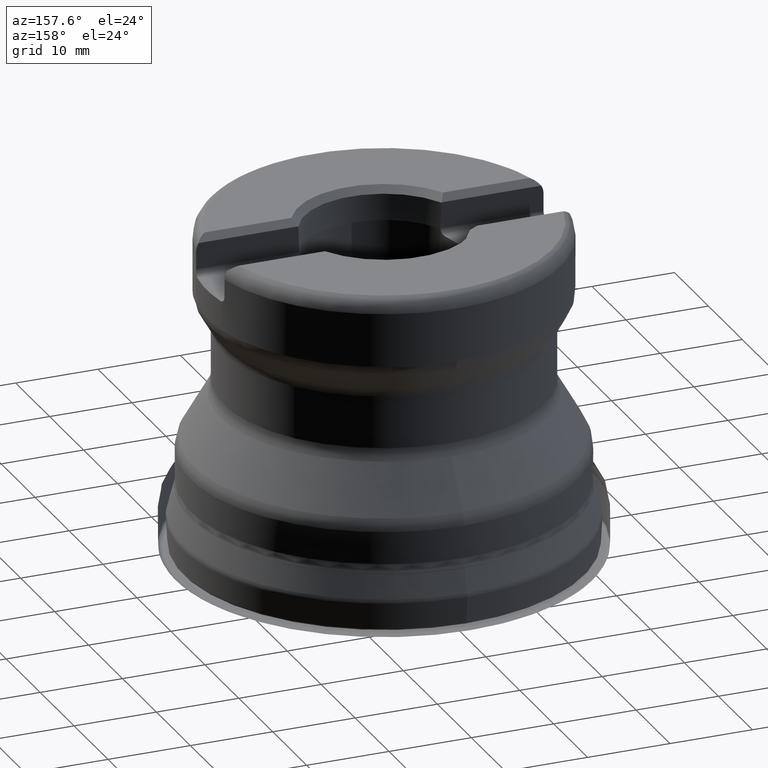
[diagram: clean part render]
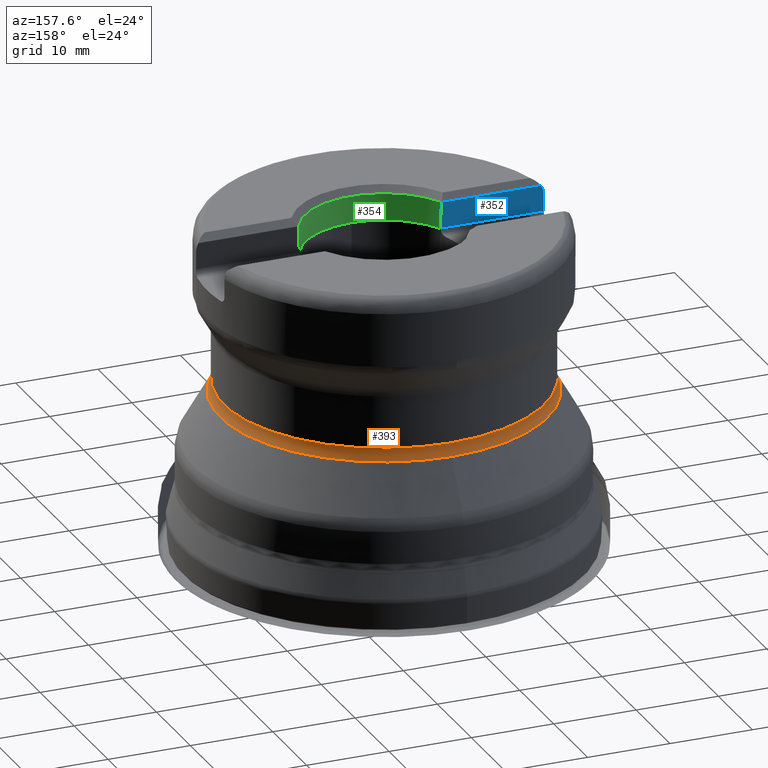
[diagram: same view with three faces highlighted in distinct colors, each labeled with its STEP entity id]
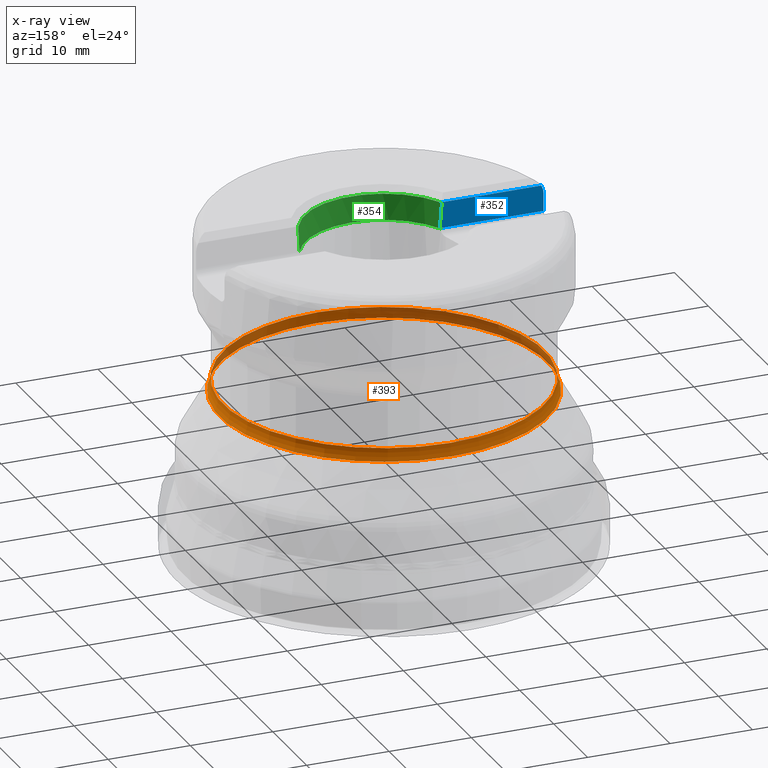
[diagram: x-ray of the same camera — body ghosted, the three highlighted faces saturated]
A machine part, auxiliary view with three faces highlighted in distinct colors.
The next image is the same camera in x-ray (body ghosted, the three faces saturated) — at least one of them is partly hidden behind the body in this view.
Their STEP definitions:

[orange] entity #393 — the highlighted toroidal blend (fillet) surface has major radius 22.5011 mm and minor (blend) radius 3 mm.
#221=FACE_BOUND('',#535,.T.);
#222=FACE_BOUND('',#536,.T.);
#393=ADVANCED_FACE('',(#221,#222),#438,.F.);
#438=TOROIDAL_SURFACE('',#1262,22.5011,3.);
#535=EDGE_LOOP('',(#743));
#536=EDGE_LOOP('',(#744));
#743=ORIENTED_EDGE('',*,*,#975,.F.);
#744=ORIENTED_EDGE('',*,*,#977,.F.);
#871=VERTEX_POINT('',#2004);
#873=VERTEX_POINT('',#2009);
#975=EDGE_CURVE('',#871,#871,#1061,.T.);
#977=EDGE_CURVE('',#873,#873,#1063,.T.);
#1061=CIRCLE('',#1210,19.9030237886467);
#1063=CIRCLE('',#1213,19.5011);
#1210=AXIS2_PLACEMENT_3D('',#2003,#1382,#1383);
#1213=AXIS2_PLACEMENT_3D('',#2008,#1388,#1389);
#1262=AXIS2_PLACEMENT_3D('',#2214,#1490,#1491);
#1382=DIRECTION('',(0.,-1.17145536458252E-15,-1.));
#1383=DIRECTION('',(0.,1.,-1.2202230636698E-15));
#1388=DIRECTION('',(0.,1.17145536458252E-15,1.));
#1389=DIRECTION('',(0.,-1.,1.24537224380549E-15));
#1490=DIRECTION('',(0.,1.17145536458252E-15,1.));
#1491=DIRECTION('',(0.,-1.,1.22445786917359E-15));
#2003=CARTESIAN_POINT('',(0.,2.25272571682189E-14,19.2301455516805));
#2004=CARTESIAN_POINT('',(0.,19.9030237886467,19.2301455516805));
#2008=CARTESIAN_POINT('',(0.,2.42844402150927E-14,20.7301455516805));
#2009=CARTESIAN_POINT('',(0.,-19.5011,20.7301455516806));
#2214=CARTESIAN_POINT('',(0.,2.42844402150927E-14,20.7301455516805));

[blue] entity #352 — the highlighted planar face has unit normal (0, -1, 0).
#282=PLANE('',#1180);
#298=LINE('',#1877,#324);
#299=LINE('',#1892,#325);
#300=LINE('',#1894,#326);
#324=VECTOR('',#1310,1.);
#325=VECTOR('',#1311,1.);
#326=VECTOR('',#1312,1.);
#352=ADVANCED_FACE('',(#443),#282,.F.);
#443=FACE_OUTER_BOUND('',#465,.T.);
#465=EDGE_LOOP('',(#603,#604,#605,#606,#607,#608));
#603=ORIENTED_EDGE('',*,*,#925,.T.);
#604=ORIENTED_EDGE('',*,*,#935,.T.);
#605=ORIENTED_EDGE('',*,*,#936,.T.);
#606=ORIENTED_EDGE('',*,*,#937,.F.);
#607=ORIENTED_EDGE('',*,*,#938,.T.);
#608=ORIENTED_EDGE('',*,*,#939,.T.);
#829=VERTEX_POINT('',#1804);
#830=VERTEX_POINT('',#1815);
#839=VERTEX_POINT('',#1878);
#840=VERTEX_POINT('',#1883);
#841=VERTEX_POINT('',#1891);
#842=VERTEX_POINT('',#1893);
#925=EDGE_CURVE('',#830,#829,#1129,.T.);
#935=EDGE_CURVE('',#829,#839,#298,.T.);
#936=EDGE_CURVE('',#839,#840,#1136,.T.);
#937=EDGE_CURVE('',#841,#840,#1137,.T.);
#938=EDGE_CURVE('',#841,#842,#299,.T.);
#939=EDGE_CURVE('',#842,#830,#300,.T.);
#1129=B_SPLINE_CURVE_WITH_KNOTS('',3,(#1805,#1806,#1807,#1808,#1809,#1810,
#1811,#1812,#1813,#1814),.UNSPECIFIED.,.F.,.F.,(4,3,3,4),(0.,0.154232044259739,
0.533249077159485,1.),.UNSPECIFIED.);
#1136=B_SPLINE_CURVE_WITH_KNOTS('',3,(#1879,#1880,#1881,#1882),
 .UNSPECIFIED.,.F.,.F.,(4,4),(0.,1.),.UNSPECIFIED.);
#1137=B_SPLINE_CURVE_WITH_KNOTS('',3,(#1884,#1885,#1886,#1887,#1888,#1889,
#1890),.UNSPECIFIED.,.F.,.F.,(4,3,4),(0.,0.646943474262642,1.),
 .UNSPECIFIED.);
#1180=AXIS2_PLACEMENT_3D('',#1895,#1313,#1314);
#1310=DIRECTION('',(1.,0.,0.));
#1311=DIRECTION('',(-1.,0.,0.));
#1312=DIRECTION('',(0.,1.17145536458252E-15,1.));
#1313=DIRECTION('',(0.,-1.,1.29536418429515E-15));
#1314=DIRECTION('',(0.,-1.29497107481669E-15,-1.));
#1804=CARTESIAN_POINT('',(-20.8186471274405,-4.17499999999995,39.0780000000031));
#1805=CARTESIAN_POINT('',(-21.0918627961126,-4.17499999999996,38.0780000000001));
#1806=CARTESIAN_POINT('',(-21.0918627961126,-4.17499999999996,38.1319909631579));
#1807=CARTESIAN_POINT('',(-21.0896301813721,-4.17499999999996,38.1860278395984));
#1808=CARTESIAN_POINT('',(-21.0851771236264,-4.17499999999996,38.2398348501028));
#1809=CARTESIAN_POINT('',(-21.0742224056589,-4.17499999999996,38.3722024631924));
#1810=CARTESIAN_POINT('',(-21.0496324512682,-4.17499999999995,38.5041182953475));
#1811=CARTESIAN_POINT('',(-21.012208593663,-4.17499999999995,38.6315570874116));
#1812=CARTESIAN_POINT('',(-20.9665067843084,-4.17499999999995,38.7871846403152));
#1813=CARTESIAN_POINT('',(-20.9009487494438,-4.17499999999995,38.9382322153864));
#1814=CARTESIAN_POINT('',(-20.8186471274405,-4.17499999999995,39.0780000000031));
#1815=CARTESIAN_POINT('',(-21.0918627961126,-4.17499999999996,38.0780000000001));
#1877=CARTESIAN_POINT('',(-8.71639111086357,-4.17499999999995,39.078));
#1878=CARTESIAN_POINT('',(-8.71639111086357,-4.17499999999995,39.078));
#1879=CARTESIAN_POINT('',(-8.71639111086357,-4.17499999999995,39.078));
#1880=CARTESIAN_POINT('',(-8.70569014287415,-4.17499999999995,39.0683490035309));
#1881=CARTESIAN_POINT('',(-8.69498752526858,-4.17499999999995,39.0586998358259));
#1882=CARTESIAN_POINT('',(-8.68428324253949,-4.17499999999995,39.0490525159901));
#1883=CARTESIAN_POINT('',(-8.68428324253949,-4.17499999999995,39.0490525159901));
#1884=CARTESIAN_POINT('',(-8.56319245851635,-4.17499999999996,35.928));
#1885=CARTESIAN_POINT('',(-8.58934042794329,-4.17499999999996,36.6010468258247));
#1886=CARTESIAN_POINT('',(-8.61546543257466,-4.17499999999996,37.2740945442065));
#1887=CARTESIAN_POINT('',(-8.64156809137656,-4.17499999999996,37.9471431288282));
#1888=CARTESIAN_POINT('',(-8.65581309800848,-4.17499999999996,38.3144460010874));
#1889=CARTESIAN_POINT('',(-8.67005144916731,-4.17499999999995,38.6817491315227));
#1890=CARTESIAN_POINT('',(-8.68428324253949,-4.17499999999995,39.0490525159901));
#1891=CARTESIAN_POINT('',(-8.56319245851635,-4.17499999999996,35.928));
#1892=CARTESIAN_POINT('',(30.,-4.17499999999996,35.928));
#1893=CARTESIAN_POINT('',(-21.0918627961117,-4.17499999999996,35.928));
#1894=CARTESIAN_POINT('',(-21.0918627961117,-4.17500000000001,5.40814546943227E-15));
#1895=CARTESIAN_POINT('',(30.,-4.17499999999996,35.128));

[green] entity #354 — the highlighted conical surface has half-angle 2 deg.
#271=CONICAL_SURFACE('',#1184,9.525,2.);
#354=ADVANCED_FACE('',(#445),#271,.F.);
#445=FACE_OUTER_BOUND('',#467,.T.);
#467=EDGE_LOOP('',(#614,#615,#616,#617,#618,#619));
#614=ORIENTED_EDGE('',*,*,#937,.T.);
#615=ORIENTED_EDGE('',*,*,#944,.T.);
#616=ORIENTED_EDGE('',*,*,#945,.T.);
#617=ORIENTED_EDGE('',*,*,#946,.T.);
#618=ORIENTED_EDGE('',*,*,#947,.T.);
#619=ORIENTED_EDGE('',*,*,#948,.T.);
#840=VERTEX_POINT('',#1883);
#841=VERTEX_POINT('',#1891);
#846=VERTEX_POINT('',#1911);
#847=VERTEX_POINT('',#1919);
#848=VERTEX_POINT('',#1924);
#849=VERTEX_POINT('',#1926);
#937=EDGE_CURVE('',#841,#840,#1137,.T.);
#944=EDGE_CURVE('',#840,#846,#1045,.T.);
#945=EDGE_CURVE('',#846,#847,#1139,.T.);
#946=EDGE_CURVE('',#847,#848,#1140,.T.);
#947=EDGE_CURVE('',#848,#849,#1046,.T.);
#948=EDGE_CURVE('',#849,#841,#1141,.T.);
#1045=CIRCLE('',#1182,9.63573559395712);
#1046=CIRCLE('',#1183,9.525);
#1137=B_SPLINE_CURVE_WITH_KNOTS('',3,(#1884,#1885,#1886,#1887,#1888,#1889,
#1890),.UNSPECIFIED.,.F.,.F.,(4,3,4),(0.,0.646943474262642,1.),
 .UNSPECIFIED.);
#1139=B_SPLINE_CURVE_WITH_KNOTS('',3,(#1912,#1913,#1914,#1915,#1916,#1917,
#1918),.UNSPECIFIED.,.F.,.F.,(4,3,4),(0.,0.353056525737358,1.),
 .UNSPECIFIED.);
#1140=B_SPLINE_CURVE_WITH_KNOTS('',3,(#1920,#1921,#1922,#1923),
 .UNSPECIFIED.,.F.,.F.,(4,4),(0.,1.),.UNSPECIFIED.);
#1141=B_SPLINE_CURVE_WITH_KNOTS('',3,(#1927,#1928,#1929,#1930),
 .UNSPECIFIED.,.F.,.F.,(4,4),(0.,1.),.UNSPECIFIED.);
#1182=AXIS2_PLACEMENT_3D('',#1910,#1320,#1321);
#1183=AXIS2_PLACEMENT_3D('',#1925,#1322,#1323);
#1184=AXIS2_PLACEMENT_3D('',#1931,#1324,#1325);
#1320=DIRECTION('',(0.,1.17145536458252E-15,1.));
#1321=DIRECTION('',(0.,1.,-1.44024165799212E-15));
#1322=DIRECTION('',(0.,-1.17145536458252E-15,-1.));
#1323=DIRECTION('',(0.,-1.,1.45698559662094E-15));
#1324=DIRECTION('',(0.,1.17145536458252E-15,1.));
#1325=DIRECTION('',(0.,-1.,1.71732504163644E-15));
#1883=CARTESIAN_POINT('',(-8.68428324253949,-4.17499999999995,39.0490525159901));
#1884=CARTESIAN_POINT('',(-8.56319245851635,-4.17499999999996,35.928));
#1885=CARTESIAN_POINT('',(-8.58934042794329,-4.17499999999996,36.6010468258247));
#1886=CARTESIAN_POINT('',(-8.61546543257466,-4.17499999999996,37.2740945442065));
#1887=CARTESIAN_POINT('',(-8.64156809137656,-4.17499999999996,37.9471431288282));
#1888=CARTESIAN_POINT('',(-8.65581309800848,-4.17499999999996,38.3144460010874));
#1889=CARTESIAN_POINT('',(-8.67005144916731,-4.17499999999995,38.6817491315227));
#1890=CARTESIAN_POINT('',(-8.68428324253949,-4.17499999999995,39.0490525159901));
#1891=CARTESIAN_POINT('',(-8.56319245851635,-4.17499999999996,35.928));
#1910=CARTESIAN_POINT('',(0.,4.57442220517214E-14,39.0490525159901));
#1911=CARTESIAN_POINT('',(8.68428324253949,-4.17499999999995,39.0490525159901));
#1912=CARTESIAN_POINT('',(8.68428324253949,-4.17499999999995,39.0490525159901));
#1913=CARTESIAN_POINT('',(8.67005144916731,-4.17499999999995,38.6817491315227));
#1914=CARTESIAN_POINT('',(8.65581309800848,-4.17499999999996,38.3144460010874));
#1915=CARTESIAN_POINT('',(8.64156809137656,-4.17499999999996,37.9471431288282));
#1916=CARTESIAN_POINT('',(8.61546543257466,-4.17499999999996,37.2740945442065));
#1917=CARTESIAN_POINT('',(8.58934042794329,-4.17499999999996,36.6010468258247));
#1918=CARTESIAN_POINT('',(8.56319245851635,-4.17499999999996,35.928));
#1919=CARTESIAN_POINT('',(8.56319245851635,-4.17499999999996,35.928));
#1920=CARTESIAN_POINT('',(8.56319245851635,-4.17499999999996,35.928));
#1921=CARTESIAN_POINT('',(8.56254494759417,-4.17499999999996,35.9113331160924));
#1922=CARTESIAN_POINT('',(8.56215101254515,-4.17447840123089,35.8946462737426));
#1923=CARTESIAN_POINT('',(8.56201245005217,-4.17343597113352,35.878));
#1924=CARTESIAN_POINT('',(8.56201245005217,-4.17343597113352,35.878));
#1925=CARTESIAN_POINT('',(0.,4.20294755704918E-14,35.878));
#1926=CARTESIAN_POINT('',(-8.56201245005217,-4.17343597113352,35.878));
#1927=CARTESIAN_POINT('',(-8.56201245005217,-4.17343597113352,35.878));
#1928=CARTESIAN_POINT('',(-8.56215101254515,-4.17447840123089,35.8946462737426));
#1929=CARTESIAN_POINT('',(-8.56254494759417,-4.17499999999996,35.9113331160924));
#1930=CARTESIAN_POINT('',(-8.56319245851635,-4.17499999999996,35.928));
#1931=CARTESIAN_POINT('',(0.,4.20294755704918E-14,35.878));